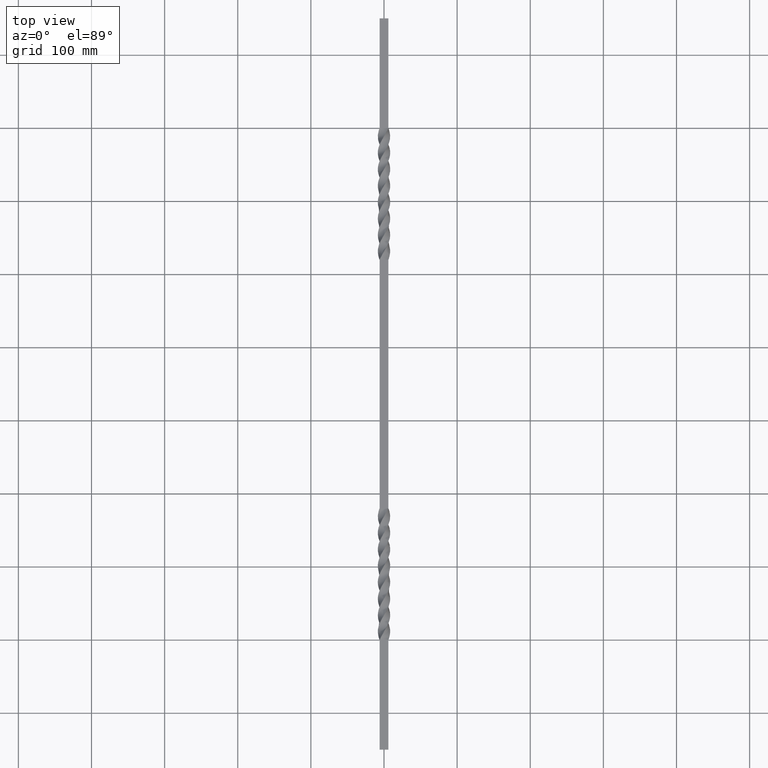
[diagram: clean part render]
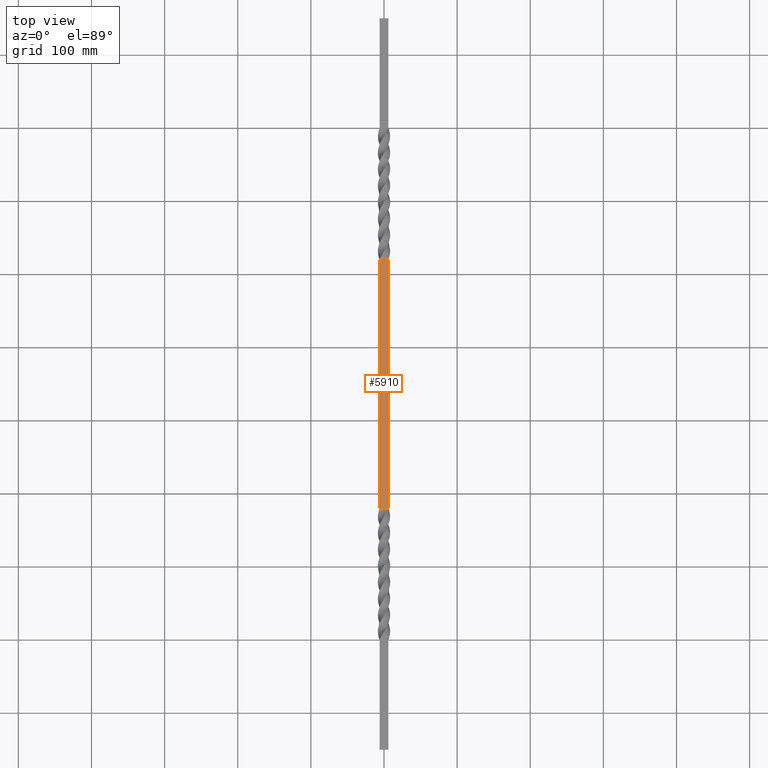
[diagram: same view with one face highlighted and labeled with its STEP entity id]
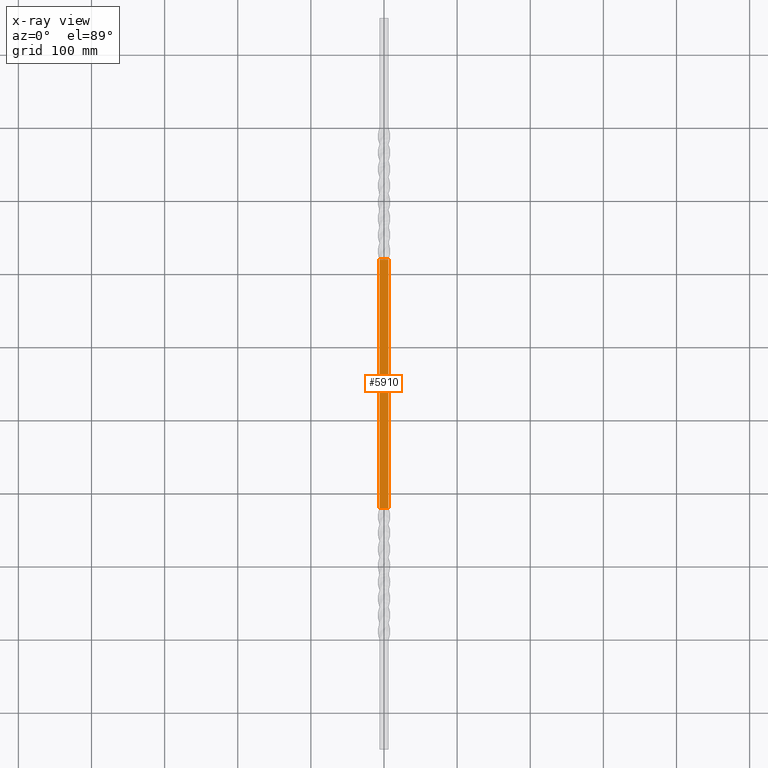
[diagram: x-ray of the same camera — body ghosted, the highlighted face saturated]
A machine part, top view. The second image highlights one B-rep face of the part: STEP entity #5910.
The next image is the same camera in x-ray: the body ghosted, the highlighted face saturated — about 0% of this face is hidden behind the body in this view.
In plain terms, the highlighted planar face has unit normal (0, 0, -1).
Its self-contained STEP definition (entity closure, byte-faithful):
#1407 = CARTESIAN_POINT ( 'NONE',  ( -6.000000006993791324, 619.9999999668445980, 5.999999997126825413 ) ) ;
#1425 = VECTOR ( 'NONE', #10776, 1000.000000000000000 ) ;
#1924 = DIRECTION ( 'NONE',  ( -1.000000000000000000, 0.000000000000000000, -2.394312322241887009E-10 ) ) ;
#1993 = ORIENTED_EDGE ( 'NONE', *, *, #10583, .T. ) ;
#2522 = EDGE_CURVE ( 'NONE', #9895, #8999, #11129, .T. ) ;
#3558 = ORIENTED_EDGE ( 'NONE', *, *, #7995, .F. ) ;
#3671 = CARTESIAN_POINT ( 'NONE',  ( 6.000000000000000000, 800.0019999863817475, 6.000000000000000000 ) ) ;
#3811 = CARTESIAN_POINT ( 'NONE',  ( -6.000000006993791324, 800.0019999863817475, 5.999999997126825413 ) ) ;
#3895 = DIRECTION ( 'NONE',  ( -0.000000000000000000, -1.000000000000000000, -0.000000000000000000 ) ) ;
#4498 = FACE_OUTER_BOUND ( 'NONE', #7886, .T. ) ;
#4651 = AXIS2_PLACEMENT_3D ( 'NONE', #3811, #13039, #1924 ) ;
#4911 = PLANE ( 'NONE',  #4651 ) ;
#5034 = CARTESIAN_POINT ( 'NONE',  ( -6.000000006993791324, 800.0019999863817475, 5.999999997126825413 ) ) ;
#5247 = LINE ( 'NONE', #3671, #1425 ) ;
#5406 = CARTESIAN_POINT ( 'NONE',  ( -6.000000006993791324, 279.9999999863817948, 5.999999997126825413 ) ) ;
#5910 = ADVANCED_FACE ( 'NONE', ( #4498 ), #4911, .F. ) ;
#6113 = VECTOR ( 'NONE', #3895, 1000.000000000000000 ) ;
#6553 = CARTESIAN_POINT ( 'NONE',  ( 0.000000000000000000, 280.0000000000000000, 6.000000000000000000 ) ) ;
#7347 = LINE ( 'NONE', #8642, #12528 ) ;
#7886 = EDGE_LOOP ( 'NONE', ( #3558, #11365, #8298, #1993 ) ) ;
#7995 = EDGE_CURVE ( 'NONE', #10424, #12290, #5247, .T. ) ;
#8298 = ORIENTED_EDGE ( 'NONE', *, *, #2522, .T. ) ;
#8551 = DIRECTION ( 'NONE',  ( 1.000000000000000000, 1.834180957847745753E-11, 3.369085433494759616E-09 ) ) ;
#8642 = CARTESIAN_POINT ( 'NONE',  ( -2.021438940714992416E-08, 619.9999999442085254, 5.999999991556416390 ) ) ;
#8689 = EDGE_CURVE ( 'NONE', #9895, #10424, #7347, .T. ) ;
#8999 = VERTEX_POINT ( 'NONE', #5406 ) ;
#9218 = CARTESIAN_POINT ( 'NONE',  ( 6.000000000000000000, 619.9999999999898819, 6.000000000000000000 ) ) ;
#9602 = LINE ( 'NONE', #6553, #12647 ) ;
#9895 = VERTEX_POINT ( 'NONE', #1407 ) ;
#10424 = VERTEX_POINT ( 'NONE', #9218 ) ;
#10583 = EDGE_CURVE ( 'NONE', #8999, #12290, #9602, .T. ) ;
#10776 = DIRECTION ( 'NONE',  ( -0.000000000000000000, -1.000000000000000000, -0.000000000000000000 ) ) ;
#11129 = LINE ( 'NONE', #5034, #6113 ) ;
#11365 = ORIENTED_EDGE ( 'NONE', *, *, #8689, .F. ) ;
#11663 = DIRECTION ( 'NONE',  ( 1.000000000000000000, 0.000000000000000000, -0.000000000000000000 ) ) ;
#12290 = VERTEX_POINT ( 'NONE', #13027 ) ;
#12528 = VECTOR ( 'NONE', #8551, 1000.000000000000000 ) ;
#12647 = VECTOR ( 'NONE', #11663, 1000.000000000000000 ) ;
#13027 = CARTESIAN_POINT ( 'NONE',  ( 6.000000000000000000, 280.0000000000000000, 6.000000000000000000 ) ) ;
#13039 = DIRECTION ( 'NONE',  ( 2.394312322241887009E-10, 0.000000000000000000, -1.000000000000000000 ) ) ;